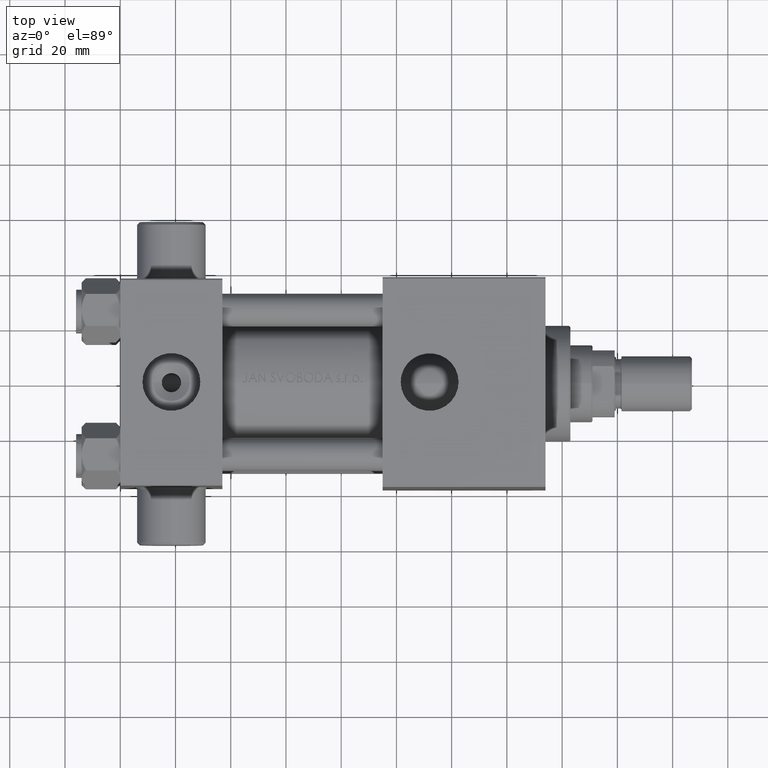
[diagram: clean part render]
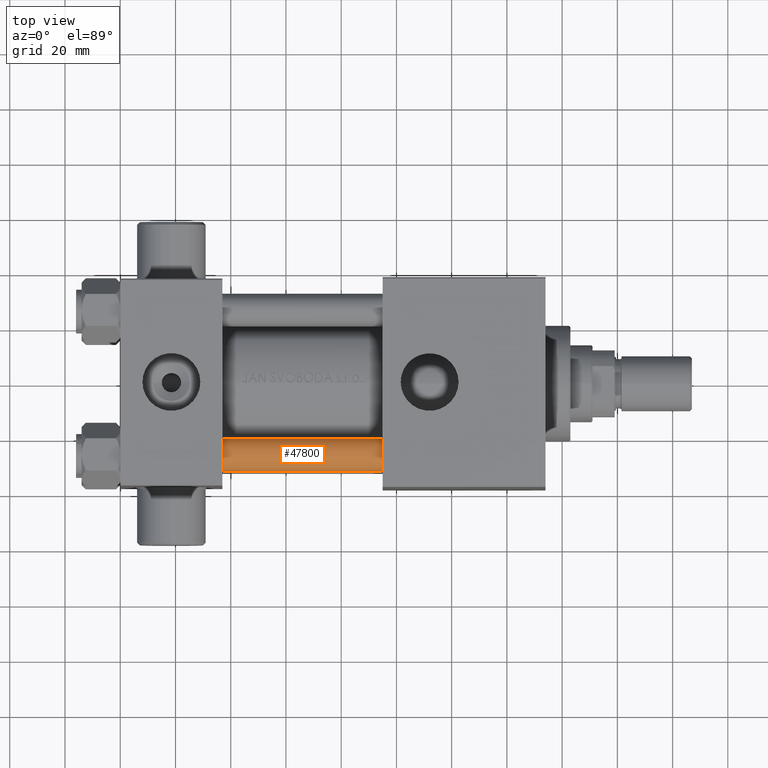
[diagram: same view with one face highlighted and labeled with its STEP entity id]
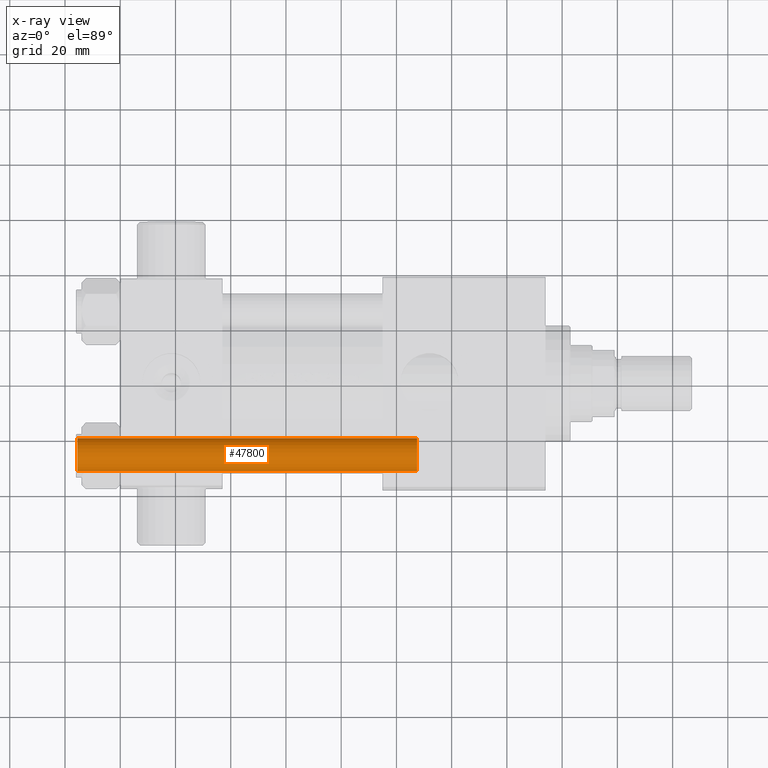
[diagram: x-ray of the same camera — body ghosted, the highlighted face saturated]
A machine part, top view. The second image highlights one B-rep face of the part: STEP entity #47800.
The next image is the same camera in x-ray: the body ghosted, the highlighted face saturated — about 0% of this face is hidden behind the body in this view.
In plain terms, the highlighted cylindrical surface (edge-blend (fillet) strip) has radius 6 mm, axis along (1, -0, -0).
Its self-contained STEP definition (entity closure, byte-faithful):
#2793 = FACE_OUTER_BOUND ( 'NONE', #11788, .T. ) ;
#3265 = CYLINDRICAL_SURFACE ( 'NONE', #40667, 6.000000000000000888 ) ;
#5749 = AXIS2_PLACEMENT_3D ( 'NONE', #36225, #46649, #12710 ) ;
#6050 = DIRECTION ( 'NONE',  ( 1.000000000000000000, 0.000000000000000000, 0.000000000000000000 ) ) ;
#7927 = EDGE_CURVE ( 'NONE', #40552, #36962, #9346, .T. ) ;
#8286 = AXIS2_PLACEMENT_3D ( 'NONE', #36270, #38846, #6050 ) ;
#8611 = DIRECTION ( 'NONE',  ( -0.000000000000000000, -0.000000000000000000, -1.000000000000000000 ) ) ;
#9104 = ORIENTED_EDGE ( 'NONE', *, *, #7927, .T. ) ;
#9346 = LINE ( 'NONE', #35353, #42954 ) ;
#10144 = VERTEX_POINT ( 'NONE', #16389 ) ;
#11788 = EDGE_LOOP ( 'NONE', ( #15100, #25741, #9104, #34200 ) ) ;
#12710 = DIRECTION ( 'NONE',  ( 1.000000000000000000, 0.000000000000000000, 0.000000000000000000 ) ) ;
#15100 = ORIENTED_EDGE ( 'NONE', *, *, #20019, .F. ) ;
#16389 = CARTESIAN_POINT ( 'NONE',  ( 6.000000000000000888, 7.347880794884120722E-16, 123.5000000000000426 ) ) ;
#17424 = DIRECTION ( 'NONE',  ( -1.000000000000000000, 0.000000000000000000, 0.000000000000000000 ) ) ;
#20019 = EDGE_CURVE ( 'NONE', #10144, #46145, #30355, .T. ) ;
#21616 = CARTESIAN_POINT ( 'NONE',  ( 0.000000000000000000, 0.000000000000000000, 124.0000000000000000 ) ) ;
#22330 = EDGE_CURVE ( 'NONE', #36962, #46145, #32841, .T. ) ;
#23924 = CIRCLE ( 'NONE', #5749, 6.000000000000000888 ) ;
#25741 = ORIENTED_EDGE ( 'NONE', *, *, #44444, .T. ) ;
#27964 = VECTOR ( 'NONE', #41281, 1000.000000000000000 ) ;
#30355 = LINE ( 'NONE', #34804, #27964 ) ;
#32841 = CIRCLE ( 'NONE', #8286, 6.000000000000000888 ) ;
#33029 = DIRECTION ( 'NONE',  ( -0.000000000000000000, -0.000000000000000000, -1.000000000000000000 ) ) ;
#34200 = ORIENTED_EDGE ( 'NONE', *, *, #22330, .T. ) ;
#34804 = CARTESIAN_POINT ( 'NONE',  ( 6.000000000000000888, 7.347880794884120722E-16, 124.0000000000000000 ) ) ;
#35353 = CARTESIAN_POINT ( 'NONE',  ( -6.000000000000000888, 0.000000000000000000, 124.0000000000000000 ) ) ;
#36225 = CARTESIAN_POINT ( 'NONE',  ( 0.000000000000000000, 0.000000000000000000, 123.5000000000000426 ) ) ;
#36270 = CARTESIAN_POINT ( 'NONE',  ( 0.000000000000000000, 0.000000000000000000, 0.4999999999999865663 ) ) ;
#36962 = VERTEX_POINT ( 'NONE', #37486 ) ;
#37486 = CARTESIAN_POINT ( 'NONE',  ( -6.000000000000000888, 0.000000000000000000, 0.4999999999999865663 ) ) ;
#38846 = DIRECTION ( 'NONE',  ( -0.000000000000000000, -0.000000000000000000, 1.000000000000000000 ) ) ;
#40552 = VERTEX_POINT ( 'NONE', #44462 ) ;
#40667 = AXIS2_PLACEMENT_3D ( 'NONE', #21616, #33029, #17424 ) ;
#41281 = DIRECTION ( 'NONE',  ( -0.000000000000000000, -0.000000000000000000, -1.000000000000000000 ) ) ;
#42954 = VECTOR ( 'NONE', #8611, 1000.000000000000000 ) ;
#44444 = EDGE_CURVE ( 'NONE', #10144, #40552, #23924, .T. ) ;
#44462 = CARTESIAN_POINT ( 'NONE',  ( -6.000000000000000888, 0.000000000000000000, 123.5000000000000426 ) ) ;
#46145 = VERTEX_POINT ( 'NONE', #48953 ) ;
#46649 = DIRECTION ( 'NONE',  ( 0.000000000000000000, 0.000000000000000000, -1.000000000000000000 ) ) ;
#47800 = ADVANCED_FACE ( 'NONE', ( #2793 ), #3265, .T. ) ;
#48953 = CARTESIAN_POINT ( 'NONE',  ( 6.000000000000000888, 7.347880794884120722E-16, 0.4999999999999865663 ) ) ;